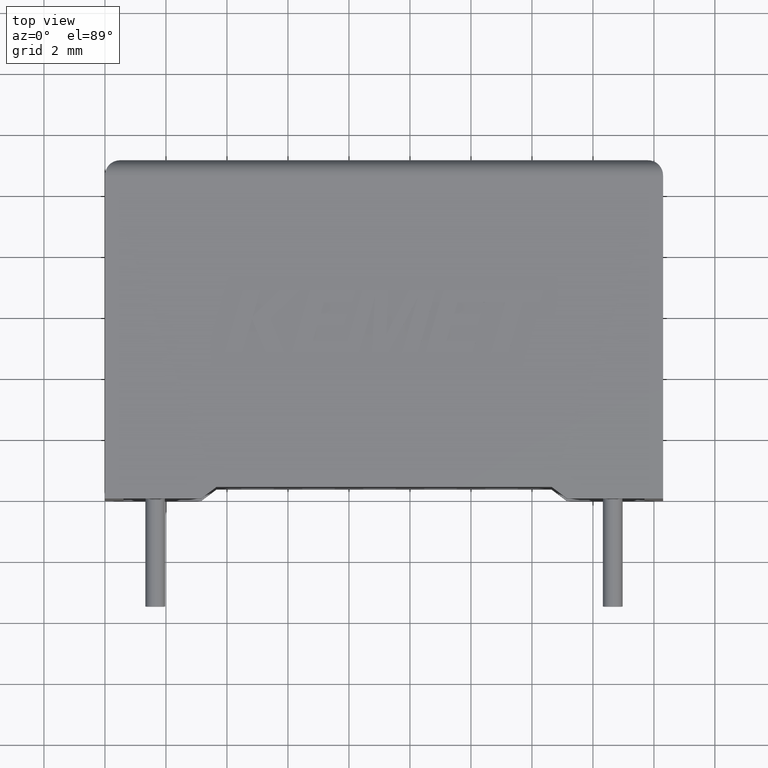
[diagram: clean part render]
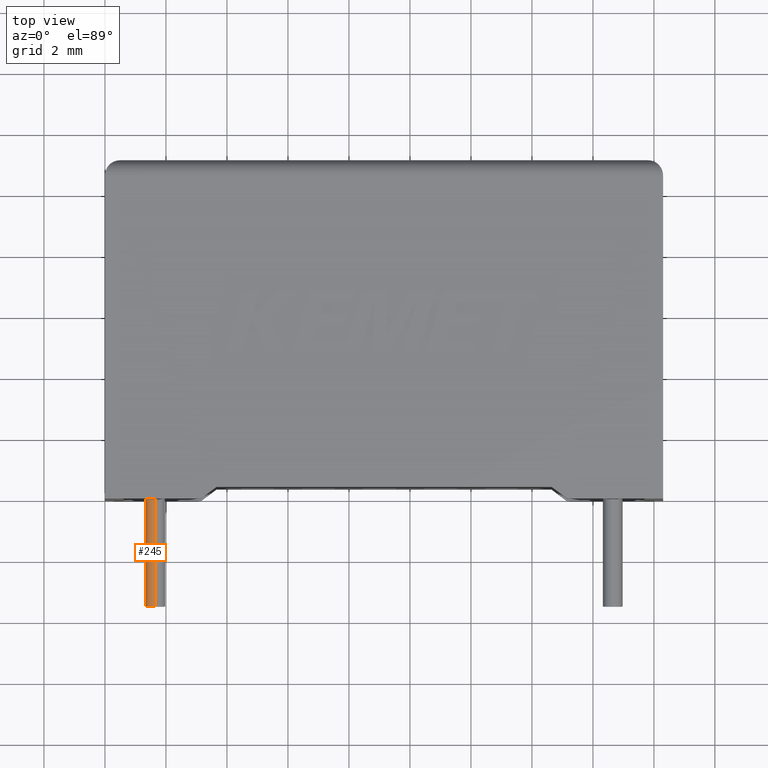
[diagram: same view with one face highlighted and labeled with its STEP entity id]
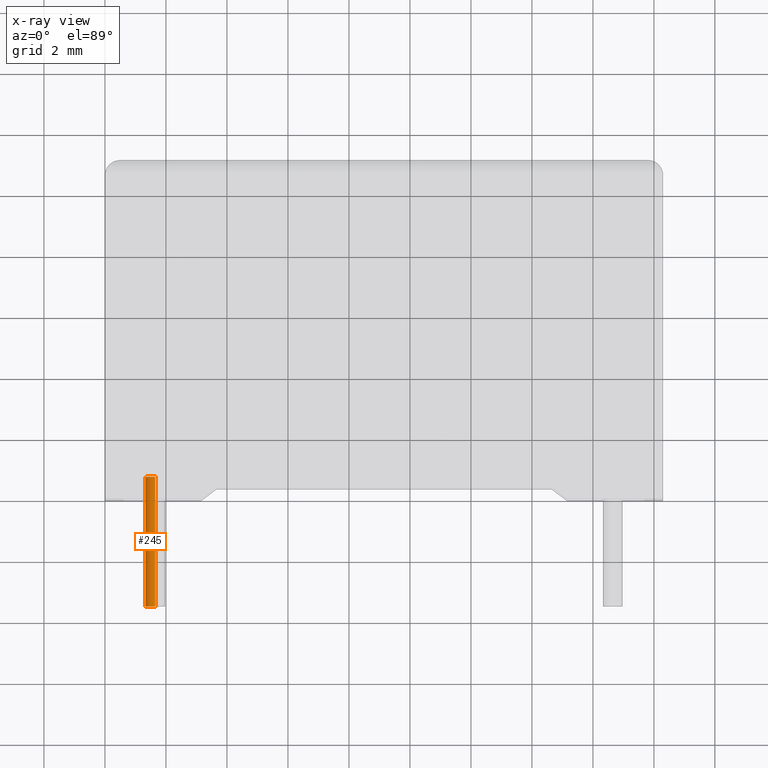
[diagram: x-ray of the same camera — body ghosted, the highlighted face saturated]
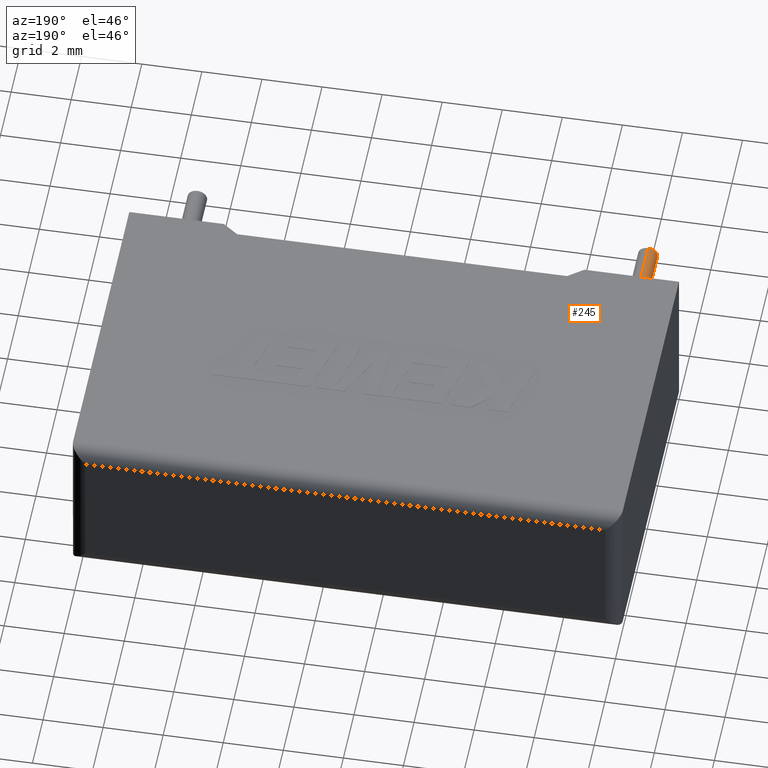
[diagram: same view with one face highlighted and labeled with its STEP entity id]
A machine part, top view. The second image highlights one B-rep face of the part: STEP entity #245.
The next image is the same camera in x-ray: the body ghosted, the highlighted face saturated — about 0% of this face is hidden behind the body in this view.
A second angle (auxiliary view) of the same face is appended — the face is thin or edge-on in the first view.
In plain terms, the highlighted cylindrical surface (edge-blend (fillet) strip) has radius 0.325 mm, axis along (-0, 1, -0).
Its self-contained STEP definition (entity closure, byte-faithful):
#10 = VECTOR ( 'NONE', #170, 1000.000000000000000 ) ;
#108 = CARTESIAN_POINT ( 'NONE',  ( 1.650000000000000355, 0.7500000000000000000, 2.924999999999999822 ) ) ;
#170 = DIRECTION ( 'NONE',  ( -0.000000000000000000, 1.000000000000000000, -0.000000000000000000 ) ) ;
#209 = LINE ( 'NONE', #1161, #10 ) ;
#245 = ADVANCED_FACE ( 'NONE', ( #843 ), #625, .T. ) ;
#289 = DIRECTION ( 'NONE',  ( -0.000000000000000000, 1.000000000000000000, -0.000000000000000000 ) ) ;
#293 = DIRECTION ( 'NONE',  ( -0.000000000000000000, 1.000000000000000000, -0.000000000000000000 ) ) ;
#353 = DIRECTION ( 'NONE',  ( 0.000000000000000000, 0.000000000000000000, -1.000000000000000000 ) ) ;
#447 = CARTESIAN_POINT ( 'NONE',  ( 1.650000000000000355, 0.7500000000000000000, 2.274999999999999911 ) ) ;
#523 = CARTESIAN_POINT ( 'NONE',  ( 1.650000000000000355, -3.500000000000000444, 2.274999999999999911 ) ) ;
#563 = AXIS2_PLACEMENT_3D ( 'NONE', #2705, #289, #2962 ) ;
#625 = CYLINDRICAL_SURFACE ( 'NONE', #563, 0.3249999999999997891 ) ;
#701 = EDGE_CURVE ( 'NONE', #2439, #1785, #2187, .T. ) ;
#799 = EDGE_CURVE ( 'NONE', #2439, #1279, #209, .T. ) ;
#843 = FACE_OUTER_BOUND ( 'NONE', #1875, .T. ) ;
#979 = ORIENTED_EDGE ( 'NONE', *, *, #2834, .T. ) ;
#1010 = VECTOR ( 'NONE', #293, 1000.000000000000000 ) ;
#1138 = EDGE_CURVE ( 'NONE', #1785, #2950, #2618, .T. ) ;
#1161 = CARTESIAN_POINT ( 'NONE',  ( 1.650000000000000355, -3.500000000000000444, 2.924999999999999822 ) ) ;
#1279 = VERTEX_POINT ( 'NONE', #108 ) ;
#1520 = AXIS2_PLACEMENT_3D ( 'NONE', #1789, #1972, #353 ) ;
#1545 = CARTESIAN_POINT ( 'NONE',  ( 1.650000000000000355, -3.500000000000000444, 2.924999999999999822 ) ) ;
#1694 = CARTESIAN_POINT ( 'NONE',  ( 1.650000000000000355, -3.500000000000000444, 2.274999999999999911 ) ) ;
#1705 = ORIENTED_EDGE ( 'NONE', *, *, #1138, .F. ) ;
#1785 = VERTEX_POINT ( 'NONE', #1694 ) ;
#1789 = CARTESIAN_POINT ( 'NONE',  ( 1.650000000000000355, 0.7500000000000000000, 2.600000000000000089 ) ) ;
#1875 = EDGE_LOOP ( 'NONE', ( #1705, #2344, #1882, #979 ) ) ;
#1882 = ORIENTED_EDGE ( 'NONE', *, *, #799, .T. ) ;
#1972 = DIRECTION ( 'NONE',  ( 0.000000000000000000, -1.000000000000000000, 0.000000000000000000 ) ) ;
#2187 = CIRCLE ( 'NONE', #2675, 0.3249999999999997891 ) ;
#2344 = ORIENTED_EDGE ( 'NONE', *, *, #701, .F. ) ;
#2438 = CIRCLE ( 'NONE', #1520, 0.3249999999999997891 ) ;
#2439 = VERTEX_POINT ( 'NONE', #1545 ) ;
#2508 = DIRECTION ( 'NONE',  ( 0.000000000000000000, 0.000000000000000000, -1.000000000000000000 ) ) ;
#2618 = LINE ( 'NONE', #523, #1010 ) ;
#2675 = AXIS2_PLACEMENT_3D ( 'NONE', #2964, #2979, #2508 ) ;
#2705 = CARTESIAN_POINT ( 'NONE',  ( 1.650000000000000355, -3.500000000000000444, 2.600000000000000089 ) ) ;
#2834 = EDGE_CURVE ( 'NONE', #1279, #2950, #2438, .T. ) ;
#2950 = VERTEX_POINT ( 'NONE', #447 ) ;
#2962 = DIRECTION ( 'NONE',  ( 0.000000000000000000, 0.000000000000000000, 1.000000000000000000 ) ) ;
#2964 = CARTESIAN_POINT ( 'NONE',  ( 1.650000000000000355, -3.500000000000000444, 2.600000000000000089 ) ) ;
#2979 = DIRECTION ( 'NONE',  ( 0.000000000000000000, -1.000000000000000000, 0.000000000000000000 ) ) ;